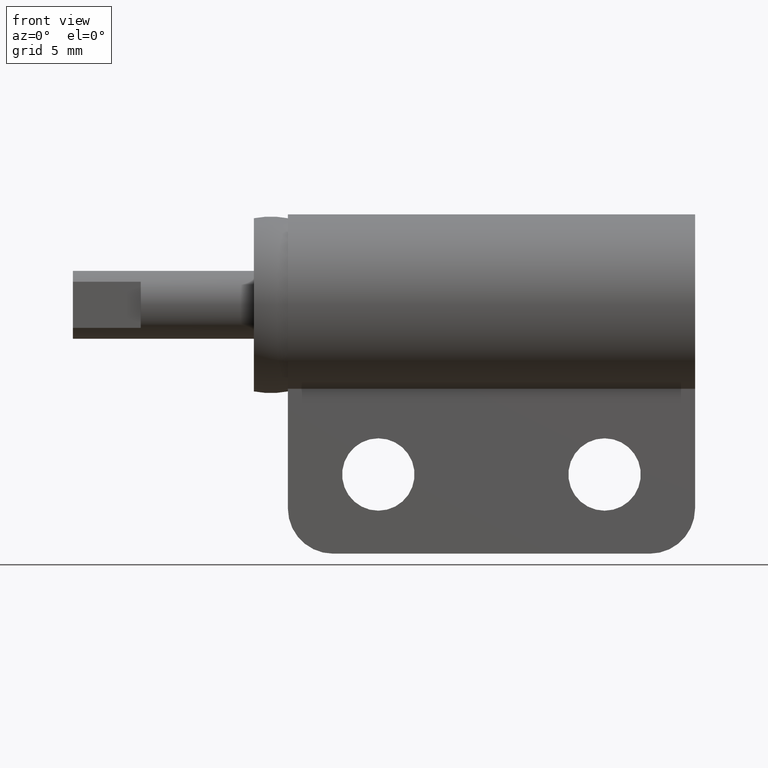
[diagram: clean part render]
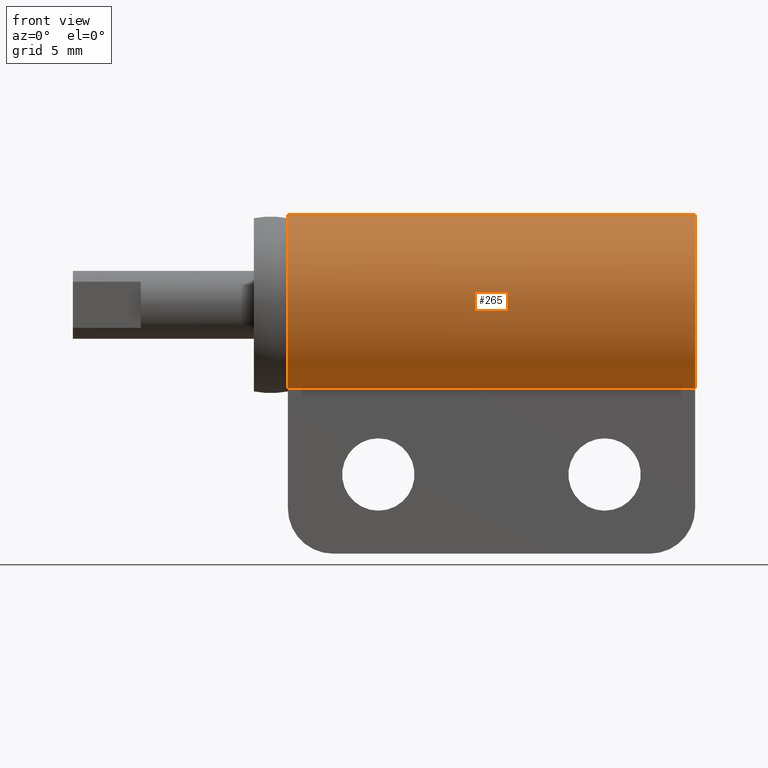
[diagram: same view with one face highlighted and labeled with its STEP entity id]
A machine part, front view. The second image highlights one B-rep face of the part: STEP entity #265.
In plain terms, the highlighted cylindrical surface (partial cylindrical patch) has radius 4 mm, axis along (1, 0, 0).
Its self-contained STEP definition (entity closure, byte-faithful):
#265=ADVANCED_FACE('',(#723),#722,.T.);
#722=CYLINDRICAL_SURFACE('',#1227,4.00000000000E+00);
#723=FACE_OUTER_BOUND('',#1228,.T.);
#1224=CARTESIAN_POINT('',(2.45000000000E+01,4.44089209850E-16,3.60822483003E-16));
#1225=DIRECTION('',(1.00000000000E+00,0.00000000000E+00,-0.00000000000E+00));
#1226=DIRECTION('',(-0.00000000000E+00,3.75000021166E-01,9.27024802325E-01));
#1227=AXIS2_PLACEMENT_3D('',#1224,#1225,#1226);
#1228=EDGE_LOOP('',(#1561,#1562,#1563,#1564));
#1561=ORIENTED_EDGE('',*,*,#1773,.T.);
#1562=ORIENTED_EDGE('',*,*,#1765,.F.);
#1563=ORIENTED_EDGE('',*,*,#1769,.T.);
#1564=ORIENTED_EDGE('',*,*,#1758,.T.);
#1758=EDGE_CURVE('',#2436,#2429,#2437,.T.);
#1765=EDGE_CURVE('',#2484,#2485,#2486,.T.);
#1769=EDGE_CURVE('',#2484,#2436,#2510,.T.);
#1773=EDGE_CURVE('',#2429,#2485,#2536,.T.);
#2429=VERTEX_POINT('',#3222);
#2436=VERTEX_POINT('',#3226);
#2437=LINE('',#3227,#3228);
#2484=VERTEX_POINT('',#3258);
#2485=VERTEX_POINT('',#3259);
#2486=LINE('',#3260,#3261);
#2510=CIRCLE('',#3277,4.00000000000E+00);
#2536=CIRCLE('',#3294,4.00000000000E+00);
#3222=CARTESIAN_POINT('',(2.45000000000E+01,-1.50000000000E+00,-3.70809900000E+00));
#3226=CARTESIAN_POINT('',(6.50000000000E+00,-1.50000000000E+00,-3.70809900000E+00));
#3227=CARTESIAN_POINT('',(6.50000000000E+00,-1.50000000000E+00,-3.70809900000E+00));
#3228=VECTOR('',#3229,1.80000000000E+01);
#3229=DIRECTION('',(1.00000000000E+00,0.00000000000E+00,0.00000000000E+00));
#3258=CARTESIAN_POINT('',(6.50000000000E+00,8.88178419700E-16,4.00000000000E+00));
#3259=CARTESIAN_POINT('',(2.45000000000E+01,0.00000000000E+00,4.00000000000E+00));
#3260=CARTESIAN_POINT('',(6.50000000000E+00,0.00000000000E+00,4.00000000000E+00));
#3261=VECTOR('',#3262,1.80000000000E+01);
#3262=DIRECTION('',(1.00000000000E+00,0.00000000000E+00,0.00000000000E+00));
#3274=CARTESIAN_POINT('',(6.50000000000E+00,0.00000000000E+00,0.00000000000E+00));
#3275=DIRECTION('',(1.00000000000E+00,0.00000000000E+00,-0.00000000000E+00));
#3276=DIRECTION('',(-0.00000000000E+00,-0.00000000000E+00,-1.00000000000E+00));
#3277=AXIS2_PLACEMENT_3D('',#3274,#3275,#3276);
#3291=CARTESIAN_POINT('',(2.45000000000E+01,0.00000000000E+00,0.00000000000E+00));
#3292=DIRECTION('',(-1.00000000000E+00,-0.00000000000E+00,0.00000000000E+00));
#3293=DIRECTION('',(-0.00000000000E+00,3.75000021166E-01,9.27024802325E-01));
#3294=AXIS2_PLACEMENT_3D('',#3291,#3292,#3293);